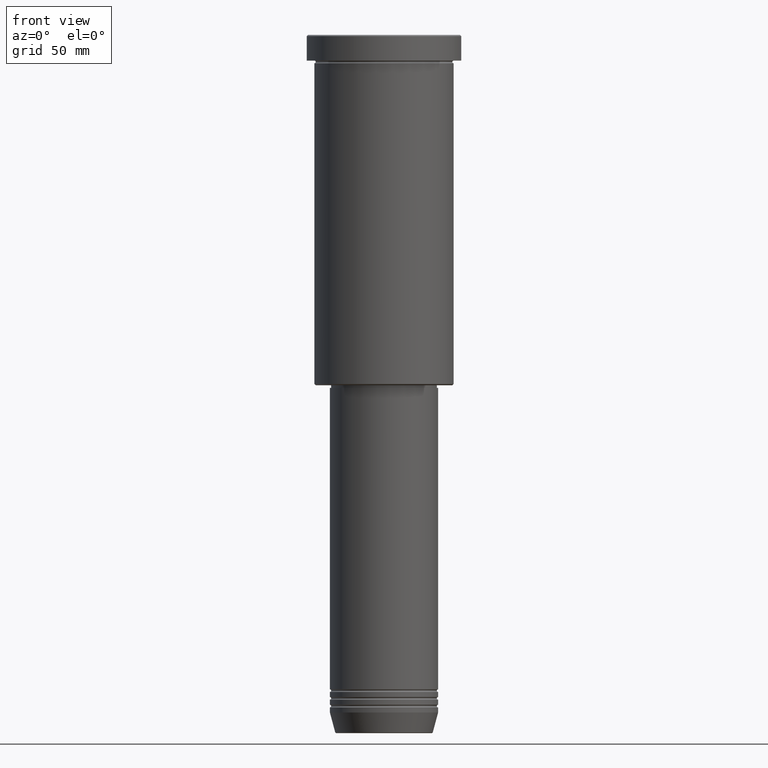
[diagram: clean part render]
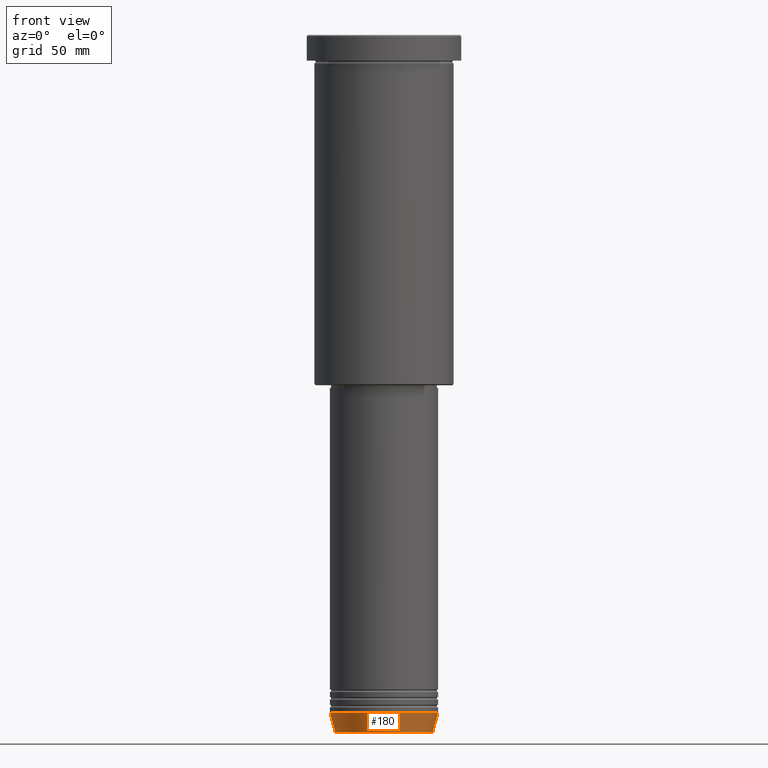
[diagram: same view with one face highlighted and labeled with its STEP entity id]
A machine part, front view. The second image highlights one B-rep face of the part: STEP entity #180.
In plain terms, the highlighted conical surface has half-angle 15 deg.
Its self-contained STEP definition (entity closure, byte-faithful):
#9 = LINE ( 'NONE', #85, #149 ) ;
#11 = CARTESIAN_POINT ( 'NONE',  ( 0.000000000000000000, 0.000000000000000000, -270.6294095225512706 ) ) ;
#12 = AXIS2_PLACEMENT_3D ( 'NONE', #512, #527, #764 ) ;
#44 = CARTESIAN_POINT ( 'NONE',  ( 0.000000000000000000, 0.000000000000000000, -263.0000000000000000 ) ) ;
#85 = CARTESIAN_POINT ( 'NONE',  ( 21.00000000000000000, 0.000000000000000000, -263.0000000000000000 ) ) ;
#118 = DIRECTION ( 'NONE',  ( -0.000000000000000000, -0.000000000000000000, 1.000000000000000000 ) ) ;
#144 = CARTESIAN_POINT ( 'NONE',  ( -18.95570587970606624, 2.446581365662755730E-15, -270.6294095225512706 ) ) ;
#149 = VECTOR ( 'NONE', #830, 1000.000000000000114 ) ;
#163 = VERTEX_POINT ( 'NONE', #240 ) ;
#180 = ADVANCED_FACE ( 'NONE', ( #1027 ), #1159, .T. ) ;
#198 = EDGE_CURVE ( 'NONE', #697, #163, #405, .T. ) ;
#219 = ORIENTED_EDGE ( 'NONE', *, *, #399, .T. ) ;
#240 = CARTESIAN_POINT ( 'NONE',  ( 21.00000000000000000, 0.000000000000000000, -263.0000000000000000 ) ) ;
#262 = ORIENTED_EDGE ( 'NONE', *, *, #533, .T. ) ;
#322 = ORIENTED_EDGE ( 'NONE', *, *, #198, .F. ) ;
#387 = AXIS2_PLACEMENT_3D ( 'NONE', #44, #432, #611 ) ;
#399 = EDGE_CURVE ( 'NONE', #793, #551, #426, .T. ) ;
#405 = CIRCLE ( 'NONE', #387, 21.00000000000000000 ) ;
#426 = CIRCLE ( 'NONE', #521, 18.95570587970606624 ) ;
#432 = DIRECTION ( 'NONE',  ( -0.000000000000000000, -0.000000000000000000, 1.000000000000000000 ) ) ;
#477 = CARTESIAN_POINT ( 'NONE',  ( -21.00000000000000000, 2.571758278209441661E-15, -263.0000000000000000 ) ) ;
#512 = CARTESIAN_POINT ( 'NONE',  ( 0.000000000000000000, 0.000000000000000000, -263.0000000000000000 ) ) ;
#521 = AXIS2_PLACEMENT_3D ( 'NONE', #11, #118, #755 ) ;
#527 = DIRECTION ( 'NONE',  ( -0.000000000000000000, -0.000000000000000000, 1.000000000000000000 ) ) ;
#533 = EDGE_CURVE ( 'NONE', #551, #163, #9, .T. ) ;
#551 = VERTEX_POINT ( 'NONE', #636 ) ;
#582 = EDGE_CURVE ( 'NONE', #793, #697, #589, .T. ) ;
#589 = LINE ( 'NONE', #477, #857 ) ;
#611 = DIRECTION ( 'NONE',  ( 1.000000000000000000, 0.000000000000000000, 0.000000000000000000 ) ) ;
#636 = CARTESIAN_POINT ( 'NONE',  ( 18.95570587970606624, 0.000000000000000000, -270.6294095225512706 ) ) ;
#697 = VERTEX_POINT ( 'NONE', #1051 ) ;
#755 = DIRECTION ( 'NONE',  ( 1.000000000000000000, 0.000000000000000000, 0.000000000000000000 ) ) ;
#764 = DIRECTION ( 'NONE',  ( 1.000000000000000000, 0.000000000000000000, 0.000000000000000000 ) ) ;
#793 = VERTEX_POINT ( 'NONE', #144 ) ;
#830 = DIRECTION ( 'NONE',  ( 0.2588190451025212391, 0.000000000000000000, 0.9659258262890680902 ) ) ;
#837 = DIRECTION ( 'NONE',  ( -0.2588190451025212391, 3.169619151431771721E-17, 0.9659258262890680902 ) ) ;
#857 = VECTOR ( 'NONE', #837, 1000.000000000000114 ) ;
#1027 = FACE_OUTER_BOUND ( 'NONE', #1067, .T. ) ;
#1051 = CARTESIAN_POINT ( 'NONE',  ( -21.00000000000000000, 2.571758278209441661E-15, -263.0000000000000000 ) ) ;
#1067 = EDGE_LOOP ( 'NONE', ( #1178, #219, #262, #322 ) ) ;
#1159 = CONICAL_SURFACE ( 'NONE', #12, 21.00000000000000000, 0.2617993877991499629 ) ;
#1178 = ORIENTED_EDGE ( 'NONE', *, *, #582, .F. ) ;